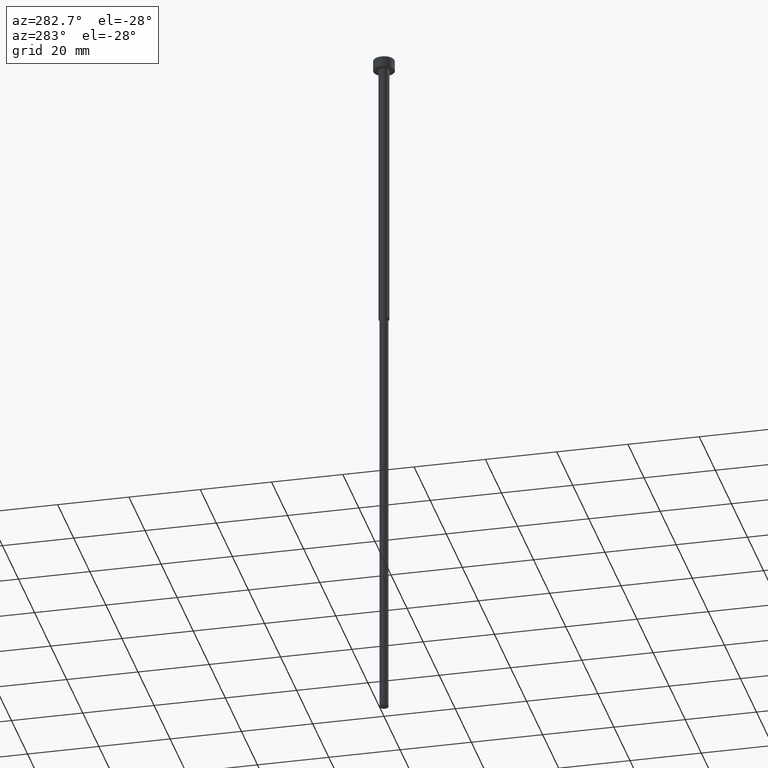
[diagram: clean part render]
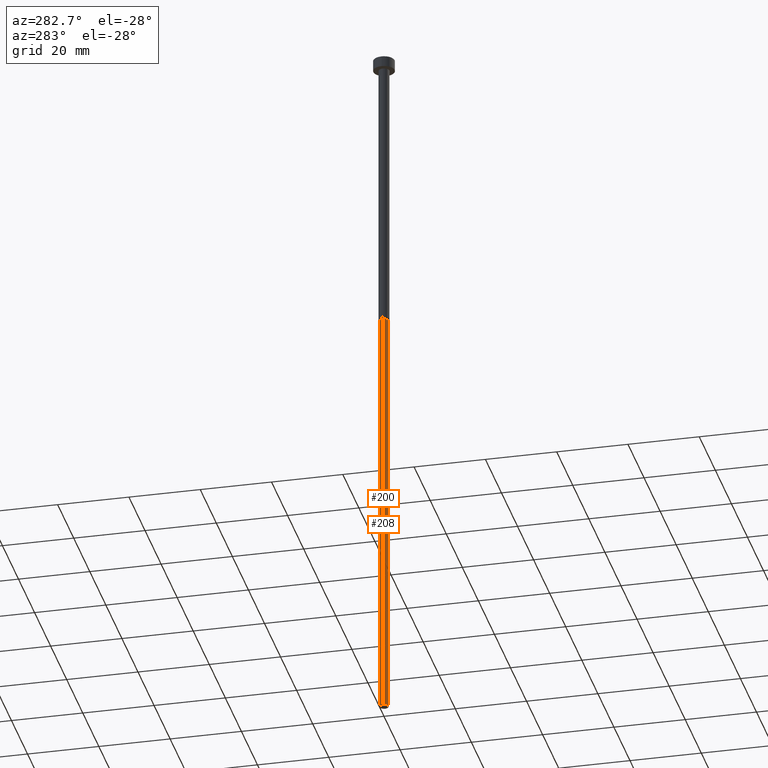
[diagram: same view with one multi-face feature highlighted, each face labeled with its STEP entity id]
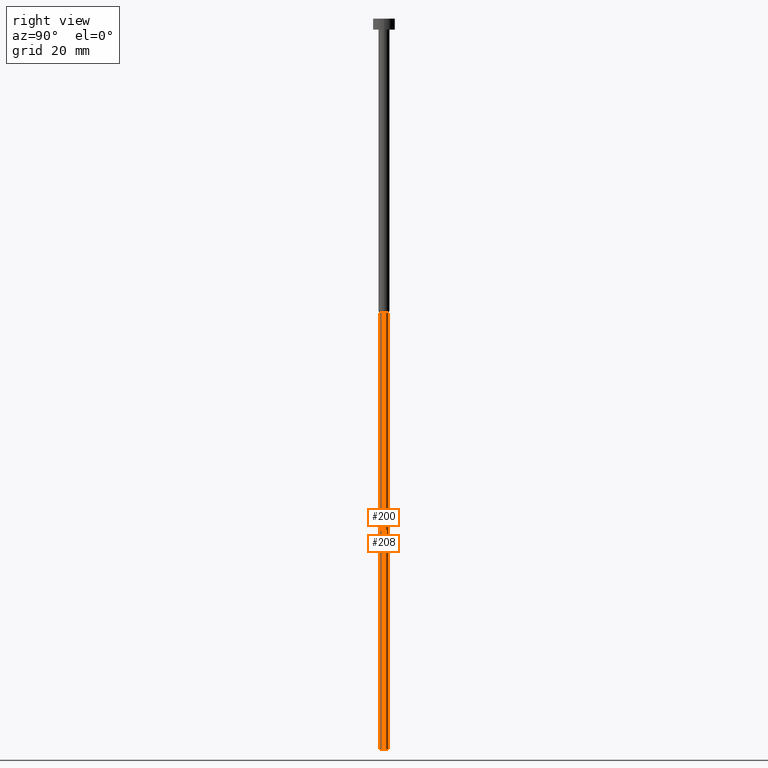
[diagram: same view with one multi-face feature highlighted, each face labeled with its STEP entity id]
A machine part, auxiliary view. The highlighted faces form ONE feature: a constant-radius fillet chain: 2 tangent blend faces with common blend radius 1.25 mm. The faces share edges in the B-rep.
A second angle (right view) of the same feature is appended — it is thin or edge-on in the first view.
Their STEP definitions:
[1] entity #208 (Cylinder):
#16 = EDGE_CURVE ( 'NONE', #157, #173, #83, .T. ) ;
#17 = ORIENTED_EDGE ( 'NONE', *, *, #16, .F. ) ;
#18 = AXIS2_PLACEMENT_3D ( 'NONE', #220, #323, #106 ) ;
#20 = CARTESIAN_POINT ( 'NONE',  ( -1.250000000000000000, 1.530808498934191571E-16, -80.43301270189222407 ) ) ;
#22 = CARTESIAN_POINT ( 'NONE',  ( 0.000000000000000000, 0.000000000000000000, -200.0000000000000000 ) ) ;
#37 = EDGE_LOOP ( 'NONE', ( #339, #213, #17, #115 ) ) ;
#46 = VECTOR ( 'NONE', #138, 1000.000000000000000 ) ;
#50 = CARTESIAN_POINT ( 'NONE',  ( -1.250000000000000000, 1.530808498934191571E-16, 0.000000000000000000 ) ) ;
#77 = FACE_OUTER_BOUND ( 'NONE', #37, .T. ) ;
#83 = CIRCLE ( 'NONE', #245, 1.250000000000000000 ) ;
#84 = CARTESIAN_POINT ( 'NONE',  ( -1.250000000000000000, 1.530808498934191571E-16, -200.0000000000000000 ) ) ;
#98 = CARTESIAN_POINT ( 'NONE',  ( 1.250000000000000000, 0.000000000000000000, 0.000000000000000000 ) ) ;
#106 = DIRECTION ( 'NONE',  ( 1.000000000000000000, 0.000000000000000000, 0.000000000000000000 ) ) ;
#115 = ORIENTED_EDGE ( 'NONE', *, *, #347, .F. ) ;
#138 = DIRECTION ( 'NONE',  ( -0.000000000000000000, -0.000000000000000000, 1.000000000000000000 ) ) ;
#151 = EDGE_CURVE ( 'NONE', #316, #173, #248, .T. ) ;
#153 = DIRECTION ( 'NONE',  ( -0.000000000000000000, -0.000000000000000000, 1.000000000000000000 ) ) ;
#156 = EDGE_CURVE ( 'NONE', #263, #316, #180, .T. ) ;
#157 = VERTEX_POINT ( 'NONE', #161 ) ;
#161 = CARTESIAN_POINT ( 'NONE',  ( 1.250000000000000000, 0.000000000000000000, -80.43301270189222407 ) ) ;
#169 = CYLINDRICAL_SURFACE ( 'NONE', #18, 1.250000000000000000 ) ;
#173 = VERTEX_POINT ( 'NONE', #20 ) ;
#180 = CIRCLE ( 'NONE', #197, 1.250000000000000000 ) ;
#194 = CARTESIAN_POINT ( 'NONE',  ( 1.250000000000000000, 0.000000000000000000, -200.0000000000000000 ) ) ;
#197 = AXIS2_PLACEMENT_3D ( 'NONE', #22, #217, #322 ) ;
#208 = ADVANCED_FACE ( 'NONE', ( #77 ), #169, .T. ) ;
#213 = ORIENTED_EDGE ( 'NONE', *, *, #151, .T. ) ;
#217 = DIRECTION ( 'NONE',  ( -0.000000000000000000, -0.000000000000000000, 1.000000000000000000 ) ) ;
#220 = CARTESIAN_POINT ( 'NONE',  ( 0.000000000000000000, 0.000000000000000000, 0.000000000000000000 ) ) ;
#244 = DIRECTION ( 'NONE',  ( -0.000000000000000000, -0.000000000000000000, 1.000000000000000000 ) ) ;
#245 = AXIS2_PLACEMENT_3D ( 'NONE', #266, #244, #318 ) ;
#248 = LINE ( 'NONE', #50, #46 ) ;
#263 = VERTEX_POINT ( 'NONE', #194 ) ;
#266 = CARTESIAN_POINT ( 'NONE',  ( 0.000000000000000000, 0.000000000000000000, -80.43301270189222407 ) ) ;
#295 = VECTOR ( 'NONE', #153, 1000.000000000000000 ) ;
#316 = VERTEX_POINT ( 'NONE', #84 ) ;
#318 = DIRECTION ( 'NONE',  ( 1.000000000000000000, 0.000000000000000000, 0.000000000000000000 ) ) ;
#322 = DIRECTION ( 'NONE',  ( 1.000000000000000000, 0.000000000000000000, 0.000000000000000000 ) ) ;
#323 = DIRECTION ( 'NONE',  ( -0.000000000000000000, -0.000000000000000000, 1.000000000000000000 ) ) ;
#339 = ORIENTED_EDGE ( 'NONE', *, *, #156, .T. ) ;
#344 = LINE ( 'NONE', #98, #295 ) ;
#347 = EDGE_CURVE ( 'NONE', #263, #157, #344, .T. ) ;
[2] entity #200 (Cylinder):
#9 = ORIENTED_EDGE ( 'NONE', *, *, #151, .F. ) ;
#20 = CARTESIAN_POINT ( 'NONE',  ( -1.250000000000000000, 1.530808498934191571E-16, -80.43301270189222407 ) ) ;
#24 = AXIS2_PLACEMENT_3D ( 'NONE', #332, #201, #32 ) ;
#25 = DIRECTION ( 'NONE',  ( -0.000000000000000000, -0.000000000000000000, 1.000000000000000000 ) ) ;
#32 = DIRECTION ( 'NONE',  ( 1.000000000000000000, 0.000000000000000000, 0.000000000000000000 ) ) ;
#33 = ORIENTED_EDGE ( 'NONE', *, *, #347, .T. ) ;
#46 = VECTOR ( 'NONE', #138, 1000.000000000000000 ) ;
#48 = CYLINDRICAL_SURFACE ( 'NONE', #302, 1.250000000000000000 ) ;
#50 = CARTESIAN_POINT ( 'NONE',  ( -1.250000000000000000, 1.530808498934191571E-16, 0.000000000000000000 ) ) ;
#57 = DIRECTION ( 'NONE',  ( 1.000000000000000000, 0.000000000000000000, 0.000000000000000000 ) ) ;
#84 = CARTESIAN_POINT ( 'NONE',  ( -1.250000000000000000, 1.530808498934191571E-16, -200.0000000000000000 ) ) ;
#93 = EDGE_LOOP ( 'NONE', ( #9, #178, #33, #340 ) ) ;
#98 = CARTESIAN_POINT ( 'NONE',  ( 1.250000000000000000, 0.000000000000000000, 0.000000000000000000 ) ) ;
#138 = DIRECTION ( 'NONE',  ( -0.000000000000000000, -0.000000000000000000, 1.000000000000000000 ) ) ;
#151 = EDGE_CURVE ( 'NONE', #316, #173, #248, .T. ) ;
#153 = DIRECTION ( 'NONE',  ( -0.000000000000000000, -0.000000000000000000, 1.000000000000000000 ) ) ;
#157 = VERTEX_POINT ( 'NONE', #161 ) ;
#161 = CARTESIAN_POINT ( 'NONE',  ( 1.250000000000000000, 0.000000000000000000, -80.43301270189222407 ) ) ;
#173 = VERTEX_POINT ( 'NONE', #20 ) ;
#178 = ORIENTED_EDGE ( 'NONE', *, *, #294, .T. ) ;
#183 = AXIS2_PLACEMENT_3D ( 'NONE', #198, #305, #57 ) ;
#194 = CARTESIAN_POINT ( 'NONE',  ( 1.250000000000000000, 0.000000000000000000, -200.0000000000000000 ) ) ;
#198 = CARTESIAN_POINT ( 'NONE',  ( 0.000000000000000000, 0.000000000000000000, -200.0000000000000000 ) ) ;
#200 = ADVANCED_FACE ( 'NONE', ( #270 ), #48, .T. ) ;
#201 = DIRECTION ( 'NONE',  ( -0.000000000000000000, -0.000000000000000000, 1.000000000000000000 ) ) ;
#206 = CIRCLE ( 'NONE', #24, 1.250000000000000000 ) ;
#243 = CIRCLE ( 'NONE', #183, 1.250000000000000000 ) ;
#248 = LINE ( 'NONE', #50, #46 ) ;
#263 = VERTEX_POINT ( 'NONE', #194 ) ;
#269 = CARTESIAN_POINT ( 'NONE',  ( 0.000000000000000000, 0.000000000000000000, 0.000000000000000000 ) ) ;
#270 = FACE_OUTER_BOUND ( 'NONE', #93, .T. ) ;
#294 = EDGE_CURVE ( 'NONE', #316, #263, #243, .T. ) ;
#295 = VECTOR ( 'NONE', #153, 1000.000000000000000 ) ;
#296 = DIRECTION ( 'NONE',  ( 1.000000000000000000, 0.000000000000000000, 0.000000000000000000 ) ) ;
#302 = AXIS2_PLACEMENT_3D ( 'NONE', #269, #25, #296 ) ;
#305 = DIRECTION ( 'NONE',  ( -0.000000000000000000, -0.000000000000000000, 1.000000000000000000 ) ) ;
#310 = EDGE_CURVE ( 'NONE', #173, #157, #206, .T. ) ;
#316 = VERTEX_POINT ( 'NONE', #84 ) ;
#332 = CARTESIAN_POINT ( 'NONE',  ( 0.000000000000000000, 0.000000000000000000, -80.43301270189222407 ) ) ;
#340 = ORIENTED_EDGE ( 'NONE', *, *, #310, .F. ) ;
#344 = LINE ( 'NONE', #98, #295 ) ;
#347 = EDGE_CURVE ( 'NONE', #263, #157, #344, .T. ) ;